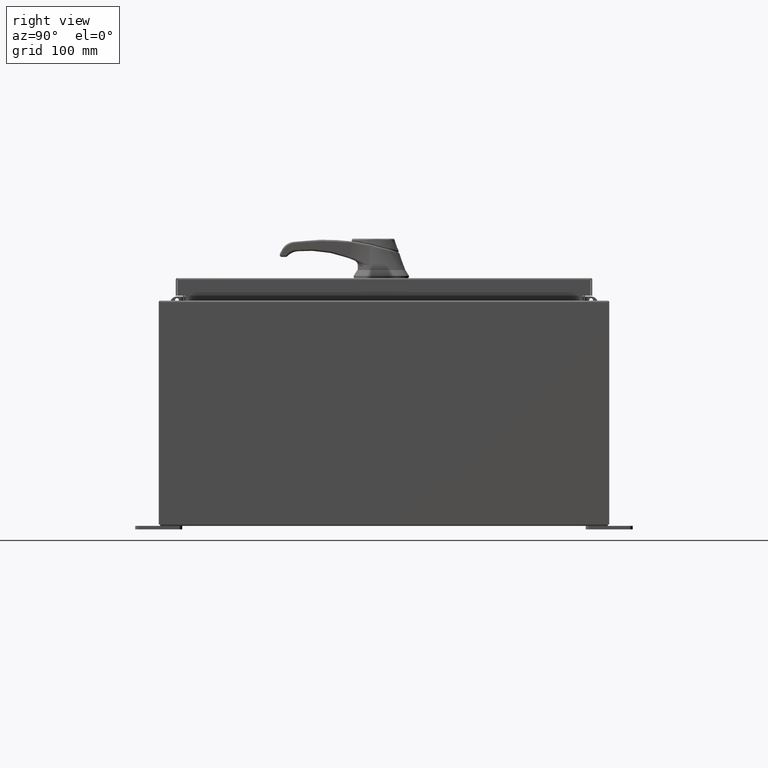
[diagram: clean part render]
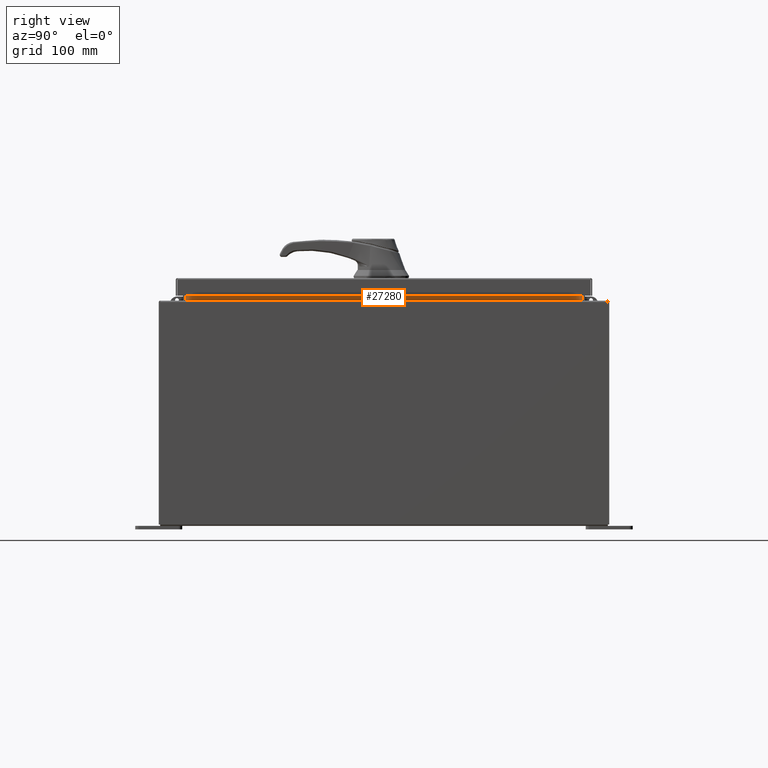
[diagram: same view with one face highlighted and labeled with its STEP entity id]
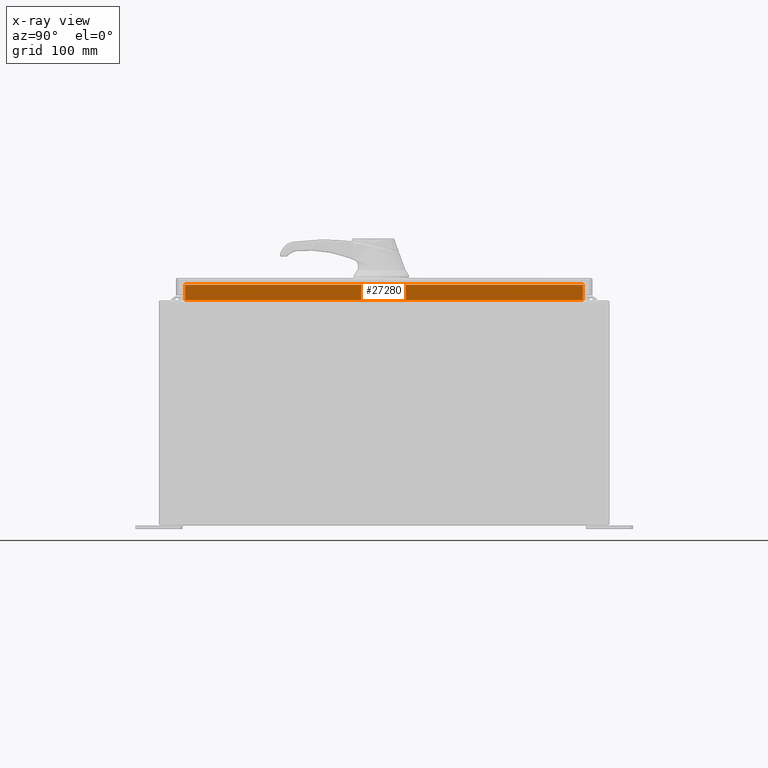
[diagram: x-ray of the same camera — body ghosted, the highlighted face saturated]
A machine part, right view. The second image highlights one B-rep face of the part: STEP entity #27280.
The next image is the same camera in x-ray: the body ghosted, the highlighted face saturated — about 0% of this face is hidden behind the body in this view.
In plain terms, the highlighted planar face has unit normal (1, 0, -0).
Its self-contained STEP definition (entity closure, byte-faithful):
#1582 = DIRECTION ( 'NONE',  ( 1.031494227696241200E-016, -1.000000000000000000, 2.062988455392482400E-016 ) ) ;
#1807 = CARTESIAN_POINT ( 'NONE',  ( 10.69970000000004100, 10.59374999999998400, 11.93830000000001200 ) ) ;
#6285 = CARTESIAN_POINT ( 'NONE',  ( 10.69970000000004800, 10.59374999999999600, 12.76290000000001100 ) ) ;
#7933 = PLANE ( 'NONE',  #56479 ) ;
#8196 = EDGE_CURVE ( 'NONE', #71701, #57069, #68849, .T. ) ;
#9184 = CARTESIAN_POINT ( 'NONE',  ( 10.69970000000004600, -10.59375000000000200, 12.76290000000001100 ) ) ;
#12447 = EDGE_CURVE ( 'NONE', #23935, #71701, #76540, .T. ) ;
#12513 = VERTEX_POINT ( 'NONE', #90146 ) ;
#16328 = DIRECTION ( 'NONE',  ( 4.723826639860397600E-015, -0.0000000000000000000, 1.000000000000000000 ) ) ;
#20747 = EDGE_CURVE ( 'NONE', #57069, #12513, #32555, .T. ) ;
#23935 = VERTEX_POINT ( 'NONE', #9184 ) ;
#24003 = CARTESIAN_POINT ( 'NONE',  ( 10.69970000000004100, 10.59374999999999600, 11.92530000000000900 ) ) ;
#24288 = ORIENTED_EDGE ( 'NONE', *, *, #20747, .F. ) ;
#24920 = EDGE_CURVE ( 'NONE', #12513, #23935, #86853, .T. ) ;
#27280 = ADVANCED_FACE ( 'NONE', ( #39843 ), #7933, .T. ) ;
#32555 = LINE ( 'NONE', #53986, #76415 ) ;
#34240 = DIRECTION ( 'NONE',  ( -4.723826639860386500E-015, 0.0000000000000000000, -1.000000000000000000 ) ) ;
#39440 = ORIENTED_EDGE ( 'NONE', *, *, #24920, .F. ) ;
#39843 = FACE_OUTER_BOUND ( 'NONE', #112299, .T. ) ;
#53986 = CARTESIAN_POINT ( 'NONE',  ( 10.69970000000004100, 10.59374999999999600, 11.93830000000000900 ) ) ;
#56479 = AXIS2_PLACEMENT_3D ( 'NONE', #60322, #86739, #34240 ) ;
#57069 = VERTEX_POINT ( 'NONE', #1807 ) ;
#58876 = DIRECTION ( 'NONE',  ( -4.723826639860386500E-015, -0.0000000000000000000, -1.000000000000000000 ) ) ;
#60322 = CARTESIAN_POINT ( 'NONE',  ( 10.69969999999998400, 0.0000000000000000000, -5.054352789851410500E-014 ) ) ;
#61841 = CARTESIAN_POINT ( 'NONE',  ( 10.69970000000004800, -10.59375000000000000, 12.76290000000001100 ) ) ;
#63525 = VECTOR ( 'NONE', #16328, 39.37007874015748100 ) ;
#66094 = VECTOR ( 'NONE', #58876, 39.37007874015748100 ) ;
#68849 = LINE ( 'NONE', #24003, #66094 ) ;
#71701 = VERTEX_POINT ( 'NONE', #6285 ) ;
#76415 = VECTOR ( 'NONE', #1582, 39.37007874015748100 ) ;
#76540 = LINE ( 'NONE', #61841, #94357 ) ;
#85795 = ORIENTED_EDGE ( 'NONE', *, *, #12447, .F. ) ;
#86739 = DIRECTION ( 'NONE',  ( 1.000000000000000000, 0.0000000000000000000, -4.723826639860386500E-015 ) ) ;
#86853 = LINE ( 'NONE', #103703, #63525 ) ;
#88286 = DIRECTION ( 'NONE',  ( 0.0000000000000000000, 1.000000000000000000, 0.0000000000000000000 ) ) ;
#90146 = CARTESIAN_POINT ( 'NONE',  ( 10.69970000000004100, -10.59375000000000200, 11.93830000000001200 ) ) ;
#94357 = VECTOR ( 'NONE', #88286, 39.37007874015748100 ) ;
#103703 = CARTESIAN_POINT ( 'NONE',  ( 10.69970000000004600, -10.59375000000000200, 12.85060000000001100 ) ) ;
#105279 = ORIENTED_EDGE ( 'NONE', *, *, #8196, .F. ) ;
#112299 = EDGE_LOOP ( 'NONE', ( #105279, #85795, #39440, #24288 ) ) ;